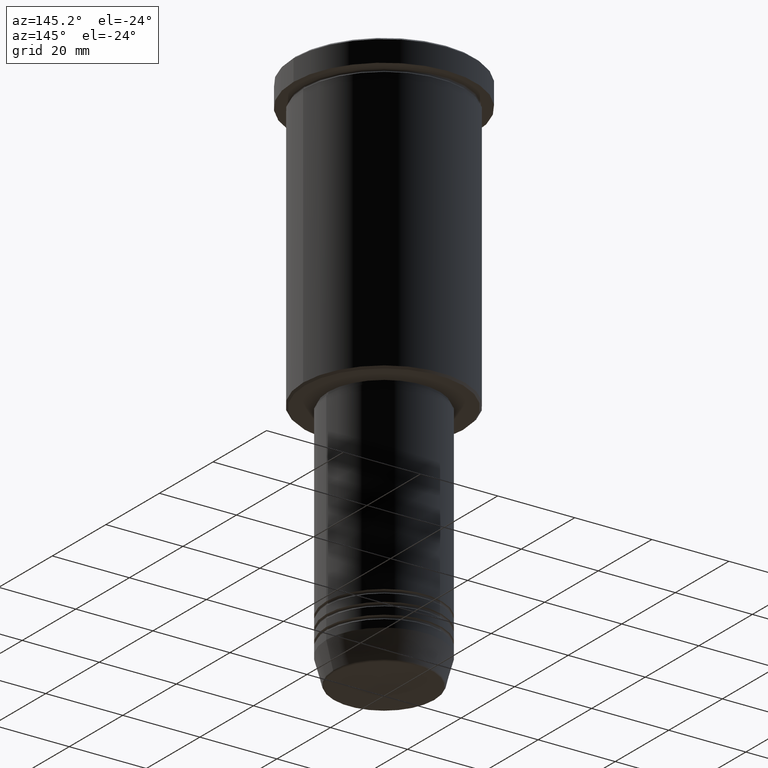
[diagram: clean part render]
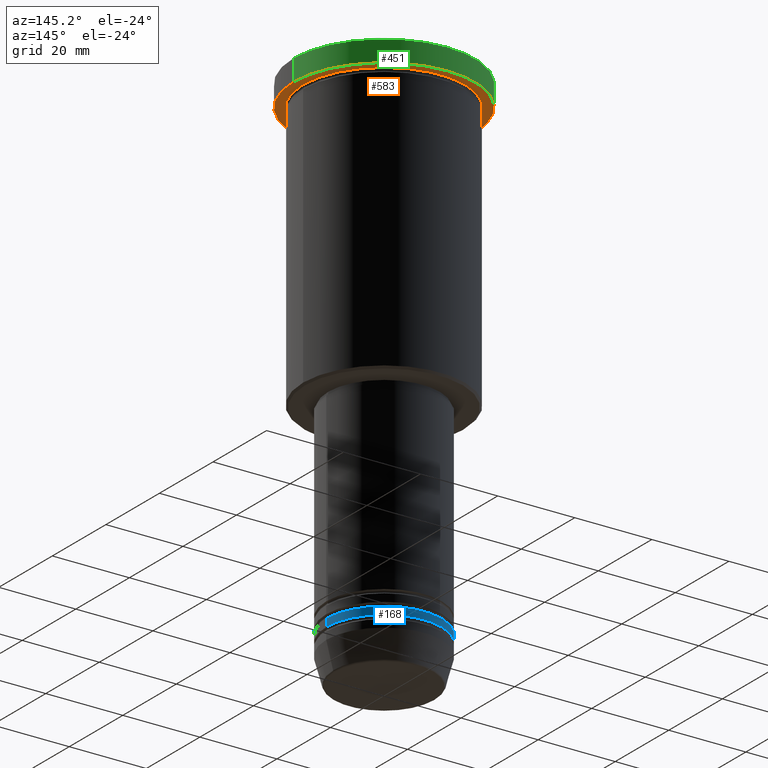
[diagram: same view with three faces highlighted in distinct colors, each labeled with its STEP entity id]
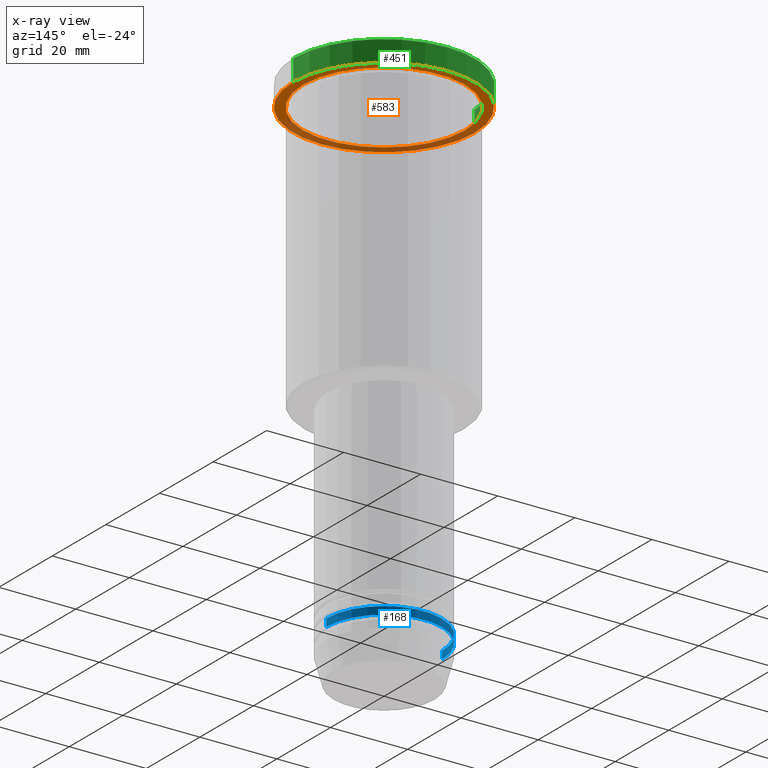
[diagram: x-ray of the same camera — body ghosted, the three highlighted faces saturated]
A machine part, auxiliary view with three faces highlighted in distinct colors.
The next image is the same camera in x-ray (body ghosted, the three faces saturated) — at least one of them is partly hidden behind the body in this view.
Their STEP definitions:

[orange] entity #583 — the highlighted planar face has unit normal (0, 0, -1).
#18 = EDGE_LOOP ( 'NONE', ( #36, #1160 ) ) ;
#32 = ORIENTED_EDGE ( 'NONE', *, *, #186, .F. ) ;
#36 = ORIENTED_EDGE ( 'NONE', *, *, #703, .T. ) ;
#111 = AXIS2_PLACEMENT_3D ( 'NONE', #908, #840, #325 ) ;
#114 = AXIS2_PLACEMENT_3D ( 'NONE', #515, #770, #580 ) ;
#186 = EDGE_CURVE ( 'NONE', #659, #811, #978, .T. ) ;
#209 = CARTESIAN_POINT ( 'NONE',  ( 23.50000000000000000, 0.000000000000000000, -5.999999999999994671 ) ) ;
#244 = AXIS2_PLACEMENT_3D ( 'NONE', #429, #440, #1060 ) ;
#263 = FACE_BOUND ( 'NONE', #18, .T. ) ;
#279 = CIRCLE ( 'NONE', #845, 23.50000000000000000 ) ;
#325 = DIRECTION ( 'NONE',  ( 1.000000000000000000, 0.000000000000000000, 0.000000000000000000 ) ) ;
#402 = DIRECTION ( 'NONE',  ( -1.000000000000000000, 0.000000000000000000, 0.000000000000000000 ) ) ;
#416 = DIRECTION ( 'NONE',  ( -0.000000000000000000, -0.000000000000000000, 1.000000000000000000 ) ) ;
#429 = CARTESIAN_POINT ( 'NONE',  ( 0.000000000000000000, 23.50000000000000000, -5.999999999999994671 ) ) ;
#440 = DIRECTION ( 'NONE',  ( 0.000000000000000000, 0.000000000000000000, -1.000000000000000000 ) ) ;
#458 = PLANE ( 'NONE',  #244 ) ;
#486 = DIRECTION ( 'NONE',  ( -0.000000000000000000, -0.000000000000000000, 1.000000000000000000 ) ) ;
#497 = ORIENTED_EDGE ( 'NONE', *, *, #835, .F. ) ;
#501 = CIRCLE ( 'NONE', #983, 21.00000000000000000 ) ;
#515 = CARTESIAN_POINT ( 'NONE',  ( 0.000000000000000000, 0.000000000000000000, -5.999999999999994671 ) ) ;
#580 = DIRECTION ( 'NONE',  ( -1.000000000000000000, 0.000000000000000000, 0.000000000000000000 ) ) ;
#583 = ADVANCED_FACE ( 'NONE', ( #263, #961 ), #458, .T. ) ;
#604 = CARTESIAN_POINT ( 'NONE',  ( -23.50000000000000000, 2.877919977996280320E-15, -5.999999999999994671 ) ) ;
#659 = VERTEX_POINT ( 'NONE', #209 ) ;
#670 = CARTESIAN_POINT ( 'NONE',  ( -21.00000000000000000, 0.000000000000000000, -5.999999999999994671 ) ) ;
#703 = EDGE_CURVE ( 'NONE', #887, #1181, #501, .T. ) ;
#741 = CARTESIAN_POINT ( 'NONE',  ( 21.00000000000000000, 2.571758278209441661E-15, -5.999999999999994671 ) ) ;
#770 = DIRECTION ( 'NONE',  ( -0.000000000000000000, -0.000000000000000000, 1.000000000000000000 ) ) ;
#811 = VERTEX_POINT ( 'NONE', #604 ) ;
#823 = EDGE_CURVE ( 'NONE', #1181, #887, #942, .T. ) ;
#835 = EDGE_CURVE ( 'NONE', #811, #659, #279, .T. ) ;
#840 = DIRECTION ( 'NONE',  ( -0.000000000000000000, -0.000000000000000000, 1.000000000000000000 ) ) ;
#845 = AXIS2_PLACEMENT_3D ( 'NONE', #1149, #416, #863 ) ;
#863 = DIRECTION ( 'NONE',  ( 1.000000000000000000, 0.000000000000000000, 0.000000000000000000 ) ) ;
#887 = VERTEX_POINT ( 'NONE', #670 ) ;
#908 = CARTESIAN_POINT ( 'NONE',  ( 0.000000000000000000, 0.000000000000000000, -5.999999999999994671 ) ) ;
#938 = EDGE_LOOP ( 'NONE', ( #32, #497 ) ) ;
#942 = CIRCLE ( 'NONE', #114, 21.00000000000000000 ) ;
#961 = FACE_OUTER_BOUND ( 'NONE', #938, .T. ) ;
#978 = CIRCLE ( 'NONE', #111, 23.50000000000000000 ) ;
#983 = AXIS2_PLACEMENT_3D ( 'NONE', #1031, #486, #402 ) ;
#1031 = CARTESIAN_POINT ( 'NONE',  ( 0.000000000000000000, 0.000000000000000000, -5.999999999999994671 ) ) ;
#1060 = DIRECTION ( 'NONE',  ( -1.000000000000000000, 0.000000000000000000, -0.000000000000000000 ) ) ;
#1149 = CARTESIAN_POINT ( 'NONE',  ( 0.000000000000000000, 0.000000000000000000, -5.999999999999994671 ) ) ;
#1160 = ORIENTED_EDGE ( 'NONE', *, *, #823, .T. ) ;
#1181 = VERTEX_POINT ( 'NONE', #741 ) ;

[blue] entity #168 — the highlighted cylindrical surface (partial cylindrical patch) has radius 15 mm, axis along (-0, -0, 1).
#12 = VERTEX_POINT ( 'NONE', #717 ) ;
#53 = ORIENTED_EDGE ( 'NONE', *, *, #1176, .F. ) ;
#63 = FACE_OUTER_BOUND ( 'NONE', #1129, .T. ) ;
#159 = VERTEX_POINT ( 'NONE', #259 ) ;
#168 = ADVANCED_FACE ( 'NONE', ( #63 ), #420, .T. ) ;
#224 = LINE ( 'NONE', #727, #807 ) ;
#231 = DIRECTION ( 'NONE',  ( -0.000000000000000000, -0.000000000000000000, 1.000000000000000000 ) ) ;
#242 = VERTEX_POINT ( 'NONE', #632 ) ;
#259 = CARTESIAN_POINT ( 'NONE',  ( 15.00000000000000000, 0.000000000000000000, -130.9999999999999716 ) ) ;
#332 = ORIENTED_EDGE ( 'NONE', *, *, #418, .T. ) ;
#347 = ORIENTED_EDGE ( 'NONE', *, *, #1146, .F. ) ;
#370 = DIRECTION ( 'NONE',  ( -0.000000000000000000, -0.000000000000000000, 1.000000000000000000 ) ) ;
#381 = DIRECTION ( 'NONE',  ( -0.000000000000000000, -0.000000000000000000, 1.000000000000000000 ) ) ;
#418 = EDGE_CURVE ( 'NONE', #242, #758, #771, .T. ) ;
#420 = CYLINDRICAL_SURFACE ( 'NONE', #569, 15.00000000000000000 ) ;
#466 = CIRCLE ( 'NONE', #984, 15.00000000000000000 ) ;
#481 = CARTESIAN_POINT ( 'NONE',  ( -15.00000000000000000, 1.836970198721029589E-15, -128.9999999999999716 ) ) ;
#535 = DIRECTION ( 'NONE',  ( 1.000000000000000000, 0.000000000000000000, 0.000000000000000000 ) ) ;
#569 = AXIS2_PLACEMENT_3D ( 'NONE', #1148, #370, #535 ) ;
#576 = CARTESIAN_POINT ( 'NONE',  ( -15.00000000000000000, 1.836970198721029589E-15, 0.000000000000000000 ) ) ;
#632 = CARTESIAN_POINT ( 'NONE',  ( -15.00000000000000000, 1.836970198721029589E-15, -130.9999999999999716 ) ) ;
#633 = ORIENTED_EDGE ( 'NONE', *, *, #1157, .T. ) ;
#717 = CARTESIAN_POINT ( 'NONE',  ( 15.00000000000000000, 0.000000000000000000, -128.9999999999999716 ) ) ;
#727 = CARTESIAN_POINT ( 'NONE',  ( 15.00000000000000000, 0.000000000000000000, 0.000000000000000000 ) ) ;
#747 = DIRECTION ( 'NONE',  ( -0.000000000000000000, -0.000000000000000000, 1.000000000000000000 ) ) ;
#758 = VERTEX_POINT ( 'NONE', #481 ) ;
#771 = LINE ( 'NONE', #576, #864 ) ;
#807 = VECTOR ( 'NONE', #747, 1000.000000000000000 ) ;
#864 = VECTOR ( 'NONE', #1151, 1000.000000000000000 ) ;
#895 = DIRECTION ( 'NONE',  ( 1.000000000000000000, 0.000000000000000000, 0.000000000000000000 ) ) ;
#966 = AXIS2_PLACEMENT_3D ( 'NONE', #1118, #231, #895 ) ;
#984 = AXIS2_PLACEMENT_3D ( 'NONE', #1005, #381, #1019 ) ;
#1005 = CARTESIAN_POINT ( 'NONE',  ( 0.000000000000000000, 0.000000000000000000, -128.9999999999999716 ) ) ;
#1019 = DIRECTION ( 'NONE',  ( 1.000000000000000000, 0.000000000000000000, 0.000000000000000000 ) ) ;
#1051 = CIRCLE ( 'NONE', #966, 15.00000000000000000 ) ;
#1118 = CARTESIAN_POINT ( 'NONE',  ( 0.000000000000000000, 0.000000000000000000, -130.9999999999999716 ) ) ;
#1129 = EDGE_LOOP ( 'NONE', ( #633, #332, #53, #347 ) ) ;
#1146 = EDGE_CURVE ( 'NONE', #159, #12, #224, .T. ) ;
#1148 = CARTESIAN_POINT ( 'NONE',  ( 0.000000000000000000, 0.000000000000000000, 0.000000000000000000 ) ) ;
#1151 = DIRECTION ( 'NONE',  ( -0.000000000000000000, -0.000000000000000000, 1.000000000000000000 ) ) ;
#1157 = EDGE_CURVE ( 'NONE', #159, #242, #1051, .T. ) ;
#1176 = EDGE_CURVE ( 'NONE', #12, #758, #466, .T. ) ;

[green] entity #451 — the highlighted cylindrical surface (partial cylindrical patch) has radius 23.5 mm, axis along (-0, -0, 1).
#51 = DIRECTION ( 'NONE',  ( -0.000000000000000000, -0.000000000000000000, 1.000000000000000000 ) ) ;
#58 = CARTESIAN_POINT ( 'NONE',  ( 23.50000000000000000, 0.000000000000000000, -0.4999999999999726885 ) ) ;
#59 = ORIENTED_EDGE ( 'NONE', *, *, #186, .T. ) ;
#66 = LINE ( 'NONE', #1121, #804 ) ;
#111 = AXIS2_PLACEMENT_3D ( 'NONE', #908, #840, #325 ) ;
#186 = EDGE_CURVE ( 'NONE', #659, #811, #978, .T. ) ;
#196 = EDGE_LOOP ( 'NONE', ( #59, #353, #958, #335 ) ) ;
#209 = CARTESIAN_POINT ( 'NONE',  ( 23.50000000000000000, 0.000000000000000000, -5.999999999999994671 ) ) ;
#237 = DIRECTION ( 'NONE',  ( -0.000000000000000000, -0.000000000000000000, 1.000000000000000000 ) ) ;
#303 = CARTESIAN_POINT ( 'NONE',  ( 0.000000000000000000, 0.000000000000000000, -0.4999999999999726885 ) ) ;
#325 = DIRECTION ( 'NONE',  ( 1.000000000000000000, 0.000000000000000000, 0.000000000000000000 ) ) ;
#335 = ORIENTED_EDGE ( 'NONE', *, *, #358, .F. ) ;
#338 = AXIS2_PLACEMENT_3D ( 'NONE', #932, #51, #574 ) ;
#343 = CARTESIAN_POINT ( 'NONE',  ( -23.50000000000000000, 2.877919977996280320E-15, 0.000000000000000000 ) ) ;
#353 = ORIENTED_EDGE ( 'NONE', *, *, #814, .T. ) ;
#358 = EDGE_CURVE ( 'NONE', #659, #928, #66, .T. ) ;
#399 = DIRECTION ( 'NONE',  ( -0.000000000000000000, -0.000000000000000000, 1.000000000000000000 ) ) ;
#451 = ADVANCED_FACE ( 'NONE', ( #937 ), #1024, .T. ) ;
#574 = DIRECTION ( 'NONE',  ( 1.000000000000000000, 0.000000000000000000, 0.000000000000000000 ) ) ;
#575 = DIRECTION ( 'NONE',  ( 0.000000000000000000, 0.000000000000000000, -1.000000000000000000 ) ) ;
#604 = CARTESIAN_POINT ( 'NONE',  ( -23.50000000000000000, 2.877919977996280320E-15, -5.999999999999994671 ) ) ;
#659 = VERTEX_POINT ( 'NONE', #209 ) ;
#718 = CIRCLE ( 'NONE', #1155, 23.50000000000000000 ) ;
#742 = EDGE_CURVE ( 'NONE', #1032, #928, #718, .T. ) ;
#775 = VECTOR ( 'NONE', #237, 1000.000000000000000 ) ;
#804 = VECTOR ( 'NONE', #399, 1000.000000000000000 ) ;
#811 = VERTEX_POINT ( 'NONE', #604 ) ;
#814 = EDGE_CURVE ( 'NONE', #811, #1032, #869, .T. ) ;
#840 = DIRECTION ( 'NONE',  ( -0.000000000000000000, -0.000000000000000000, 1.000000000000000000 ) ) ;
#869 = LINE ( 'NONE', #343, #775 ) ;
#908 = CARTESIAN_POINT ( 'NONE',  ( 0.000000000000000000, 0.000000000000000000, -5.999999999999994671 ) ) ;
#928 = VERTEX_POINT ( 'NONE', #58 ) ;
#930 = DIRECTION ( 'NONE',  ( 1.000000000000000000, 0.000000000000000000, 0.000000000000000000 ) ) ;
#932 = CARTESIAN_POINT ( 'NONE',  ( 0.000000000000000000, 0.000000000000000000, 0.000000000000000000 ) ) ;
#937 = FACE_OUTER_BOUND ( 'NONE', #196, .T. ) ;
#958 = ORIENTED_EDGE ( 'NONE', *, *, #742, .T. ) ;
#978 = CIRCLE ( 'NONE', #111, 23.50000000000000000 ) ;
#1024 = CYLINDRICAL_SURFACE ( 'NONE', #338, 23.50000000000000000 ) ;
#1032 = VERTEX_POINT ( 'NONE', #1183 ) ;
#1121 = CARTESIAN_POINT ( 'NONE',  ( 23.50000000000000000, 0.000000000000000000, 0.000000000000000000 ) ) ;
#1155 = AXIS2_PLACEMENT_3D ( 'NONE', #303, #575, #930 ) ;
#1183 = CARTESIAN_POINT ( 'NONE',  ( -23.50000000000000000, 2.877919977996280320E-15, -0.4999999999999726885 ) ) ;